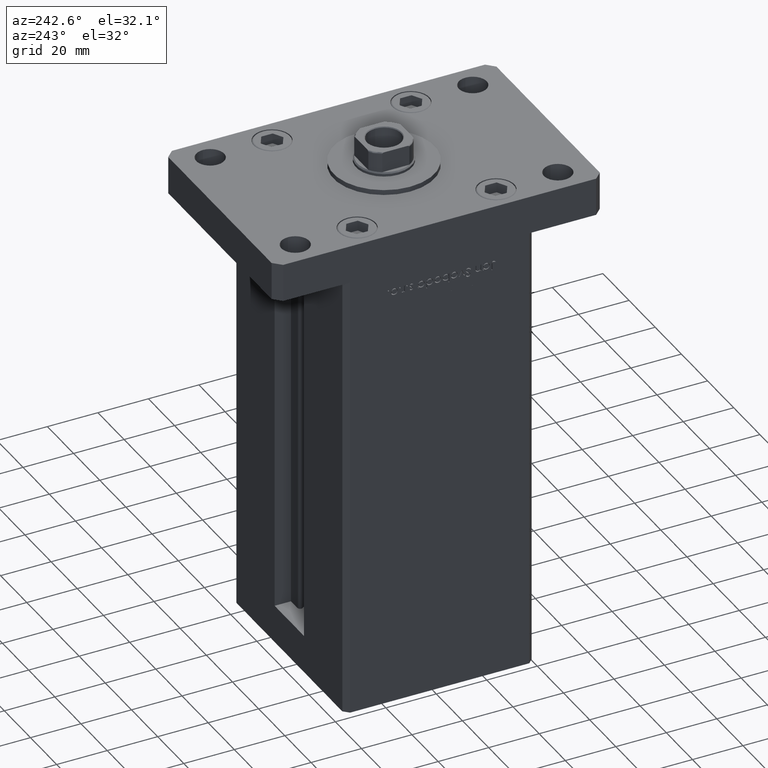
[diagram: clean part render]
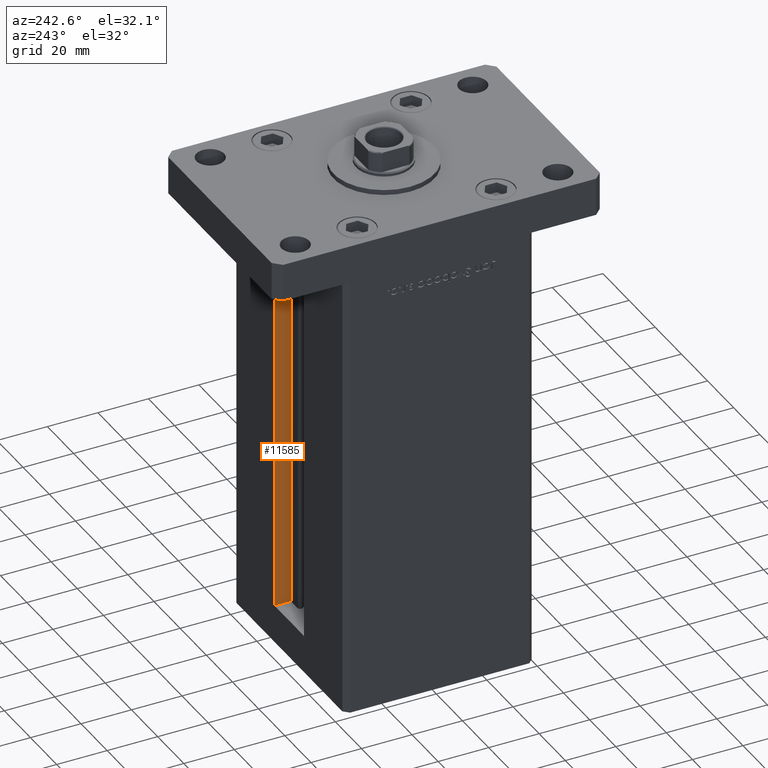
[diagram: same view with one face highlighted and labeled with its STEP entity id]
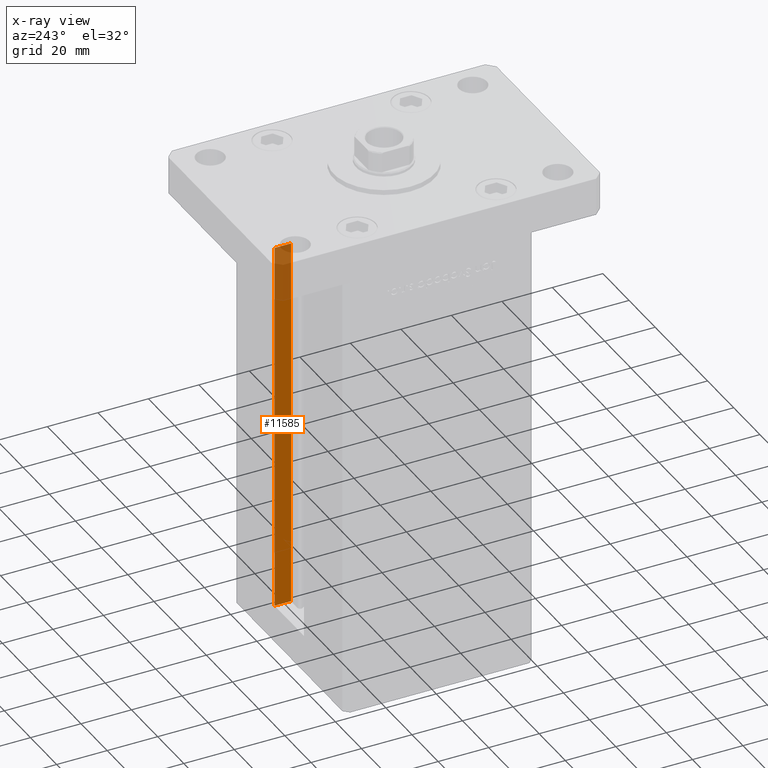
[diagram: x-ray of the same camera — body ghosted, the highlighted face saturated]
A machine part, auxiliary view. The second image highlights one B-rep face of the part: STEP entity #11585.
The next image is the same camera in x-ray: the body ghosted, the highlighted face saturated — about 15% of this face is hidden behind the body in this view.
In plain terms, the highlighted planar face has unit normal (1, 0, 0).
Its self-contained STEP definition (entity closure, byte-faithful):
#3458 = VECTOR ( 'NONE', #32889, 1000.000000000000000 ) ;
#11238 = DIRECTION ( 'NONE',  ( 1.000000000000000000, -0.000000000000000000, 0.000000000000000000 ) ) ;
#11508 = CARTESIAN_POINT ( 'NONE',  ( 11.25000000000000000, 30.99999999999999289, 0.000000000000000000 ) ) ;
#11585 = ADVANCED_FACE ( 'NONE', ( #45339 ), #24487, .F. ) ;
#11759 = CARTESIAN_POINT ( 'NONE',  ( 11.25000000000000000, 30.99999999999999289, 0.000000000000000000 ) ) ;
#12014 = VERTEX_POINT ( 'NONE', #13569 ) ;
#12419 = ORIENTED_EDGE ( 'NONE', *, *, #21445, .F. ) ;
#12883 = DIRECTION ( 'NONE',  ( -0.000000000000000000, -1.000000000000000000, 0.000000000000000000 ) ) ;
#13412 = LINE ( 'NONE', #17470, #41605 ) ;
#13569 = CARTESIAN_POINT ( 'NONE',  ( 11.25000000000000000, 37.50000000000000000, 0.000000000000000000 ) ) ;
#14141 = VERTEX_POINT ( 'NONE', #18352 ) ;
#16087 = LINE ( 'NONE', #11508, #18640 ) ;
#17006 = CARTESIAN_POINT ( 'NONE',  ( 11.24999999999999289, 37.50000000000000000, 148.5000000000000000 ) ) ;
#17470 = CARTESIAN_POINT ( 'NONE',  ( 11.25000000000000000, 0.000000000000000000, 148.5000000000000000 ) ) ;
#18257 = DIRECTION ( 'NONE',  ( -0.000000000000000000, -0.000000000000000000, 1.000000000000000000 ) ) ;
#18352 = CARTESIAN_POINT ( 'NONE',  ( 11.25000000000000000, 30.99999999999999289, 0.000000000000000000 ) ) ;
#18640 = VECTOR ( 'NONE', #19637, 1000.000000000000000 ) ;
#19601 = EDGE_CURVE ( 'NONE', #14141, #20423, #34441, .T. ) ;
#19637 = DIRECTION ( 'NONE',  ( 0.000000000000000000, 1.000000000000000000, 0.000000000000000000 ) ) ;
#19976 = ORIENTED_EDGE ( 'NONE', *, *, #19601, .T. ) ;
#20423 = VERTEX_POINT ( 'NONE', #48593 ) ;
#21445 = EDGE_CURVE ( 'NONE', #45196, #20423, #13412, .T. ) ;
#21533 = LINE ( 'NONE', #42637, #40386 ) ;
#21968 = CARTESIAN_POINT ( 'NONE',  ( 11.25000000000000000, 30.99999999999999289, 0.000000000000000000 ) ) ;
#24487 = PLANE ( 'NONE',  #49225 ) ;
#30543 = ORIENTED_EDGE ( 'NONE', *, *, #42043, .F. ) ;
#32889 = DIRECTION ( 'NONE',  ( -0.000000000000000000, -0.000000000000000000, 1.000000000000000000 ) ) ;
#34441 = LINE ( 'NONE', #21968, #3458 ) ;
#39274 = EDGE_LOOP ( 'NONE', ( #30543, #43806, #19976, #12419 ) ) ;
#40386 = VECTOR ( 'NONE', #18257, 1000.000000000000000 ) ;
#41605 = VECTOR ( 'NONE', #12883, 1000.000000000000000 ) ;
#42043 = EDGE_CURVE ( 'NONE', #12014, #45196, #21533, .T. ) ;
#42637 = CARTESIAN_POINT ( 'NONE',  ( 11.25000000000000000, 37.50000000000000000, 0.000000000000000000 ) ) ;
#43806 = ORIENTED_EDGE ( 'NONE', *, *, #52880, .F. ) ;
#45073 = DIRECTION ( 'NONE',  ( 0.000000000000000000, 0.000000000000000000, -1.000000000000000000 ) ) ;
#45196 = VERTEX_POINT ( 'NONE', #17006 ) ;
#45339 = FACE_OUTER_BOUND ( 'NONE', #39274, .T. ) ;
#48593 = CARTESIAN_POINT ( 'NONE',  ( 11.25000000000000000, 30.99999999999999289, 148.5000000000000000 ) ) ;
#49225 = AXIS2_PLACEMENT_3D ( 'NONE', #11759, #11238, #45073 ) ;
#52880 = EDGE_CURVE ( 'NONE', #14141, #12014, #16087, .T. ) ;